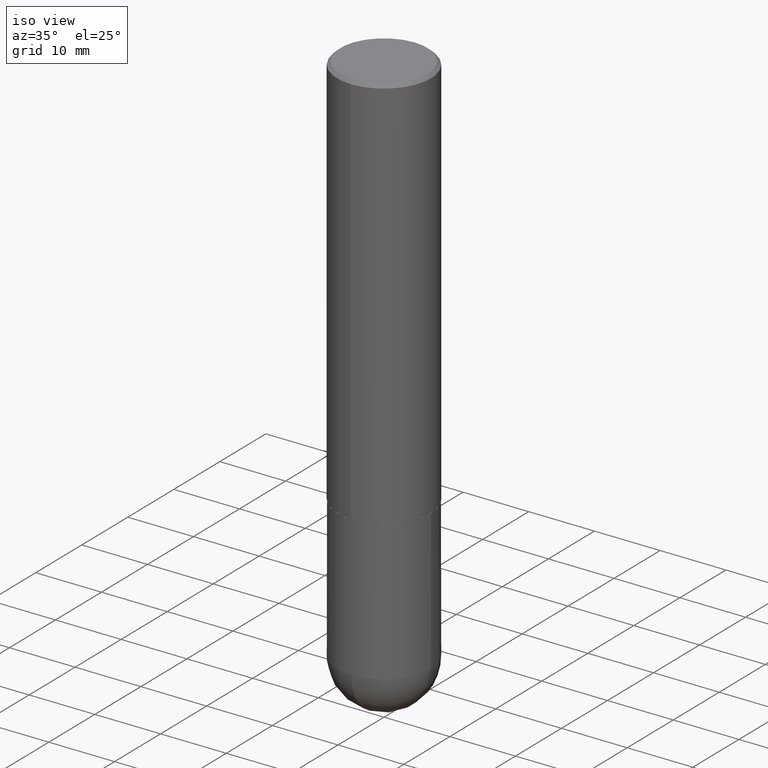
[diagram: clean part render]
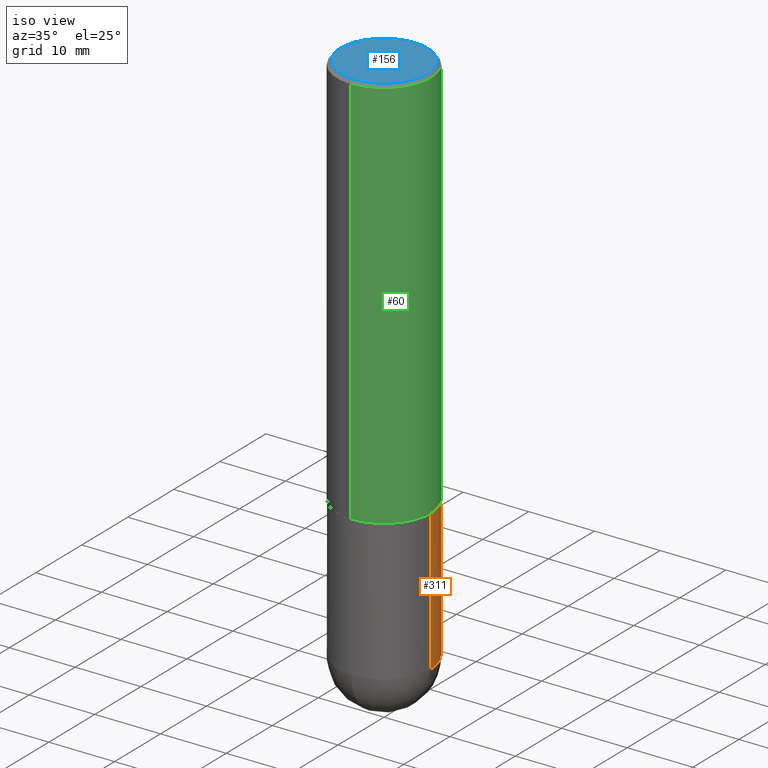
[diagram: same view with three faces highlighted in distinct colors, each labeled with its STEP entity id]
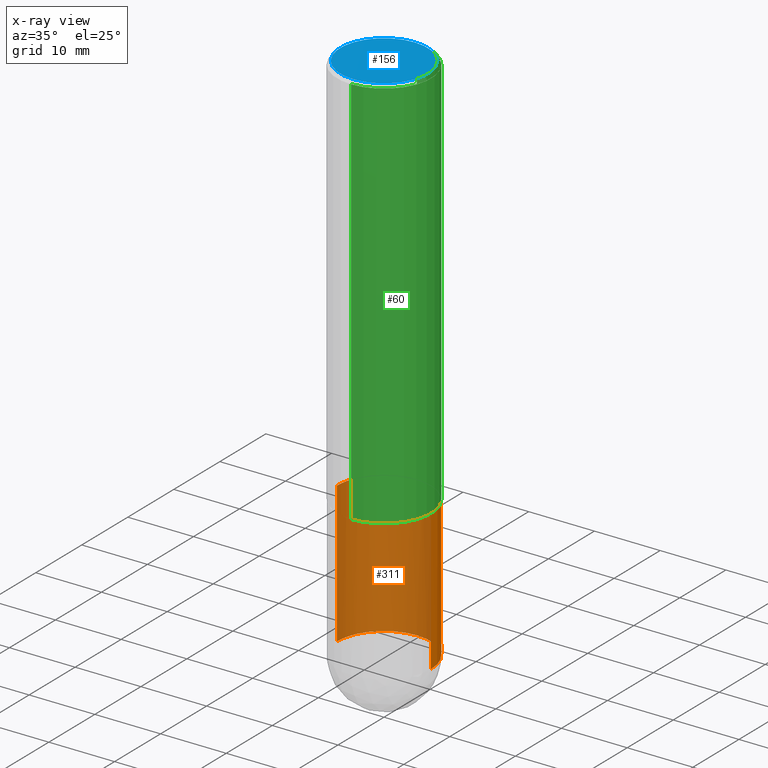
[diagram: x-ray of the same camera — body ghosted, the three highlighted faces saturated]
A machine part, iso view with three faces highlighted in distinct colors.
The next image is the same camera in x-ray (body ghosted, the three faces saturated) — at least one of them is partly hidden behind the body in this view.
Their STEP definitions:

[orange] entity #311 — the highlighted cylindrical surface (partial cylindrical patch) has radius 7.1438 mm, axis along (-0, 0, 1).
#17 = EDGE_CURVE ( 'NONE', #129, #151, #356, .T. ) ;
#25 = CARTESIAN_POINT ( 'NONE',  ( 1.963958253099340610E-15, 0.2812499999999886757, -3.218750000000000888 ) ) ;
#28 = VERTEX_POINT ( 'NONE', #324 ) ;
#36 = CARTESIAN_POINT ( 'NONE',  ( 0.2812500000000000555, -1.963958253099262907E-15, 1.371424718192607012E-29 ) ) ;
#40 = DIRECTION ( 'NONE',  ( -2.445468806185136877E-29, 3.491481338843145188E-15, 1.000000000000000000 ) ) ;
#67 = CARTESIAN_POINT ( 'NONE',  ( 0.000000000000000000, 0.000000000000000000, 0.000000000000000000 ) ) ;
#70 = DIRECTION ( 'NONE',  ( 1.000000000000000000, -6.982962677686266711E-15, 0.000000000000000000 ) ) ;
#80 = EDGE_LOOP ( 'NONE', ( #400, #375, #242, #243, #188 ) ) ;
#81 = CARTESIAN_POINT ( 'NONE',  ( 7.871352719908407300E-29, -1.123820555940137375E-14, -3.218749999999999556 ) ) ;
#86 = CARTESIAN_POINT ( 'NONE',  ( 7.871352719908407300E-29, -1.123820555940137375E-14, -3.218749999999999556 ) ) ;
#88 = CIRCLE ( 'NONE', #247, 0.2812500000000000555 ) ;
#110 = VECTOR ( 'NONE', #299, 39.37007874015748143 ) ;
#128 = DIRECTION ( 'NONE',  ( 1.000000000000000000, -6.982962677686268288E-15, 0.000000000000000000 ) ) ;
#129 = VERTEX_POINT ( 'NONE', #182 ) ;
#130 = LINE ( 'NONE', #36, #186 ) ;
#134 = CARTESIAN_POINT ( 'NONE',  ( 0.2812500000000000555, -1.172919512267618602E-14, -3.218749999999999556 ) ) ;
#150 = DIRECTION ( 'NONE',  ( -2.445468806185136597E-29, 3.491481338843145583E-15, 1.000000000000000000 ) ) ;
#151 = VERTEX_POINT ( 'NONE', #187 ) ;
#172 = CARTESIAN_POINT ( 'NONE',  ( -0.2812500000000000555, 1.998401444325282167E-15, -1.383450494134192269E-29 ) ) ;
#182 = CARTESIAN_POINT ( 'NONE',  ( 0.2812500000000000000, -1.025622643285173184E-14, -2.374999999999999556 ) ) ;
#186 = VECTOR ( 'NONE', #40, 39.37007874015748143 ) ;
#187 = CARTESIAN_POINT ( 'NONE',  ( -0.2812500000000000000, -7.766835425251639371E-15, -2.374999999999999556 ) ) ;
#188 = ORIENTED_EDGE ( 'NONE', *, *, #202, .T. ) ;
#189 = DIRECTION ( 'NONE',  ( -2.445468806185136597E-29, 3.491481338843145583E-15, 1.000000000000000000 ) ) ;
#200 = AXIS2_PLACEMENT_3D ( 'NONE', #229, #353, #70 ) ;
#201 = CYLINDRICAL_SURFACE ( 'NONE', #240, 0.2812500000000000555 ) ;
#202 = EDGE_CURVE ( 'NONE', #347, #216, #344, .T. ) ;
#213 = FACE_OUTER_BOUND ( 'NONE', #80, .T. ) ;
#216 = VERTEX_POINT ( 'NONE', #25 ) ;
#229 = CARTESIAN_POINT ( 'NONE',  ( 5.807988414689698296E-29, -8.292268179752468540E-15, -2.374999999999999556 ) ) ;
#232 = EDGE_CURVE ( 'NONE', #216, #28, #88, .T. ) ;
#240 = AXIS2_PLACEMENT_3D ( 'NONE', #67, #410, #378 ) ;
#242 = ORIENTED_EDGE ( 'NONE', *, *, #17, .F. ) ;
#243 = ORIENTED_EDGE ( 'NONE', *, *, #329, .F. ) ;
#247 = AXIS2_PLACEMENT_3D ( 'NONE', #86, #150, #128 ) ;
#273 = AXIS2_PLACEMENT_3D ( 'NONE', #81, #189, #316 ) ;
#299 = DIRECTION ( 'NONE',  ( -2.445468806185136877E-29, 3.491481338843145188E-15, 1.000000000000000000 ) ) ;
#311 = ADVANCED_FACE ( 'NONE', ( #213 ), #201, .T. ) ;
#316 = DIRECTION ( 'NONE',  ( 1.000000000000000000, -6.982962677686268288E-15, 0.000000000000000000 ) ) ;
#324 = CARTESIAN_POINT ( 'NONE',  ( -0.2812500000000000555, -7.766835425251640949E-15, -3.218749999999999556 ) ) ;
#329 = EDGE_CURVE ( 'NONE', #347, #129, #130, .T. ) ;
#335 = EDGE_CURVE ( 'NONE', #28, #151, #376, .T. ) ;
#344 = CIRCLE ( 'NONE', #273, 0.2812500000000000555 ) ;
#347 = VERTEX_POINT ( 'NONE', #134 ) ;
#353 = DIRECTION ( 'NONE',  ( -2.445468806185136597E-29, 3.491481338843145583E-15, 1.000000000000000000 ) ) ;
#356 = CIRCLE ( 'NONE', #200, 0.2812500000000000000 ) ;
#375 = ORIENTED_EDGE ( 'NONE', *, *, #335, .T. ) ;
#376 = LINE ( 'NONE', #172, #110 ) ;
#378 = DIRECTION ( 'NONE',  ( 1.000000000000000000, -6.982962677686266711E-15, 4.876176775795935232E-29 ) ) ;
#400 = ORIENTED_EDGE ( 'NONE', *, *, #232, .T. ) ;
#410 = DIRECTION ( 'NONE',  ( -2.445468806185136597E-29, 3.491481338843145583E-15, 1.000000000000000000 ) ) ;

[blue] entity #156 — the highlighted planar face has unit normal (0, -0, -1).
#1 = CARTESIAN_POINT ( 'NONE',  ( 4.382219202564076479E-45, -6.257564182083579775E-31, -1.792106157134673927E-16 ) ) ;
#2 = VERTEX_POINT ( 'NONE', #350 ) ;
#46 = CARTESIAN_POINT ( 'NONE',  ( -1.860910081895528315E-15, -0.2612500000000002043, 7.330057929300550377E-16 ) ) ;
#59 = DIRECTION ( 'NONE',  ( -6.982962677686265133E-15, -1.000000000000000000, 3.491737449353193105E-15 ) ) ;
#142 = EDGE_CURVE ( 'NONE', #404, #2, #256, .T. ) ;
#154 = FACE_OUTER_BOUND ( 'NONE', #355, .T. ) ;
#156 = ADVANCED_FACE ( 'NONE', ( #154 ), #306, .F. ) ;
#160 = DIRECTION ( 'NONE',  ( 6.982962677686265922E-15, 1.000000000000000000, -3.491737449353193105E-15 ) ) ;
#190 = ORIENTED_EDGE ( 'NONE', *, *, #142, .T. ) ;
#217 = AXIS2_PLACEMENT_3D ( 'NONE', #339, #312, #59 ) ;
#256 = CIRCLE ( 'NONE', #217, 0.2612500000000002043 ) ;
#289 = CARTESIAN_POINT ( 'NONE',  ( 1.824298999545538283E-15, 0.2612500000000002043, -1.001821716500255930E-15 ) ) ;
#298 = AXIS2_PLACEMENT_3D ( 'NONE', #1, #382, #325 ) ;
#306 = PLANE ( 'NONE',  #364 ) ;
#312 = DIRECTION ( 'NONE',  ( -2.445289965171834089E-29, 3.491737449353193105E-15, 1.000000000000000000 ) ) ;
#325 = DIRECTION ( 'NONE',  ( -6.982962677686265133E-15, -1.000000000000000000, 3.491737449353193105E-15 ) ) ;
#326 = EDGE_CURVE ( 'NONE', #2, #404, #331, .T. ) ;
#331 = CIRCLE ( 'NONE', #298, 0.2612500000000002043 ) ;
#339 = CARTESIAN_POINT ( 'NONE',  ( 4.382219202564076479E-45, -6.257564182083579775E-31, -1.792106157134673927E-16 ) ) ;
#350 = CARTESIAN_POINT ( 'NONE',  ( 1.894128626322400397E-15, 0.2612500000000002043, -1.091427024356989823E-15 ) ) ;
#355 = EDGE_LOOP ( 'NONE', ( #370, #190 ) ) ;
#364 = AXIS2_PLACEMENT_3D ( 'NONE', #289, #371, #160 ) ;
#370 = ORIENTED_EDGE ( 'NONE', *, *, #326, .T. ) ;
#371 = DIRECTION ( 'NONE',  ( 2.445289965171833809E-29, -3.491737449353193105E-15, -1.000000000000000000 ) ) ;
#382 = DIRECTION ( 'NONE',  ( -2.445289965171834089E-29, 3.491737449353193105E-15, 1.000000000000000000 ) ) ;
#404 = VERTEX_POINT ( 'NONE', #46 ) ;

[green] entity #60 — the highlighted cylindrical surface (partial cylindrical patch) has radius 7.1438 mm, axis along (-0, 0, 1).
#6 = EDGE_CURVE ( 'NONE', #20, #155, #185, .T. ) ;
#10 = VECTOR ( 'NONE', #120, 39.37007874015748143 ) ;
#14 = FACE_OUTER_BOUND ( 'NONE', #293, .T. ) ;
#20 = VERTEX_POINT ( 'NONE', #198 ) ;
#48 = EDGE_CURVE ( 'NONE', #195, #224, #336, .T. ) ;
#60 = ADVANCED_FACE ( 'NONE', ( #14 ), #277, .T. ) ;
#96 = AXIS2_PLACEMENT_3D ( 'NONE', #133, #261, #380 ) ;
#99 = ORIENTED_EDGE ( 'NONE', *, *, #48, .T. ) ;
#107 = DIRECTION ( 'NONE',  ( -6.982962677686265133E-15, -1.000000000000000000, 3.885294924322502955E-15 ) ) ;
#120 = DIRECTION ( 'NONE',  ( -2.445289965171834089E-29, 3.491737449353193105E-15, 1.000000000000000000 ) ) ;
#131 = ORIENTED_EDGE ( 'NONE', *, *, #6, .F. ) ;
#133 = CARTESIAN_POINT ( 'NONE',  ( 4.890579930343684363E-31, -6.983474898706407953E-17, -0.02000000000000006287 ) ) ;
#155 = VERTEX_POINT ( 'NONE', #157 ) ;
#157 = CARTESIAN_POINT ( 'NONE',  ( 1.963958253099263301E-15, 0.2812499999999999445, -0.02000000000000104472 ) ) ;
#176 = CARTESIAN_POINT ( 'NONE',  ( 5.805118377317934048E-29, -8.289384704764479021E-15, -2.373999999999999666 ) ) ;
#178 = VECTOR ( 'NONE', #366, 39.37007874015748143 ) ;
#185 = CIRCLE ( 'NONE', #96, 0.2812500000000000555 ) ;
#195 = VERTEX_POINT ( 'NONE', #255 ) ;
#198 = CARTESIAN_POINT ( 'NONE',  ( -1.929515061873242857E-15, -0.2812500000000001110, -0.01999999999999908101 ) ) ;
#205 = AXIS2_PLACEMENT_3D ( 'NONE', #176, #304, #107 ) ;
#224 = VERTEX_POINT ( 'NONE', #408 ) ;
#234 = DIRECTION ( 'NONE',  ( -2.445289965171834089E-29, 3.491737449353193105E-15, 1.000000000000000000 ) ) ;
#239 = EDGE_CURVE ( 'NONE', #195, #20, #284, .T. ) ;
#245 = CARTESIAN_POINT ( 'NONE',  ( -1.963958253099263696E-15, -0.2812500000000001665, 9.820511576305861032E-16 ) ) ;
#250 = LINE ( 'NONE', #399, #10 ) ;
#253 = ORIENTED_EDGE ( 'NONE', *, *, #292, .T. ) ;
#255 = CARTESIAN_POINT ( 'NONE',  ( -1.963958253099206503E-15, -0.2812500000000086042, -2.373999999999998334 ) ) ;
#261 = DIRECTION ( 'NONE',  ( -2.445289965171834089E-29, 3.491737449353193105E-15, 1.000000000000000000 ) ) ;
#277 = CYLINDRICAL_SURFACE ( 'NONE', #397, 0.2812500000000001665 ) ;
#284 = LINE ( 'NONE', #245, #178 ) ;
#292 = EDGE_CURVE ( 'NONE', #224, #155, #250, .T. ) ;
#293 = EDGE_LOOP ( 'NONE', ( #99, #253, #131, #295 ) ) ;
#295 = ORIENTED_EDGE ( 'NONE', *, *, #239, .F. ) ;
#304 = DIRECTION ( 'NONE',  ( -2.445289965171834089E-29, 3.491737449353193105E-15, 1.000000000000000000 ) ) ;
#336 = CIRCLE ( 'NONE', #205, 0.2812500000000003331 ) ;
#358 = DIRECTION ( 'NONE',  ( -6.982962677686266711E-15, -1.000000000000000000, 3.491737449353193105E-15 ) ) ;
#366 = DIRECTION ( 'NONE',  ( -2.445289965171834089E-29, 3.491737449353193105E-15, 1.000000000000000000 ) ) ;
#380 = DIRECTION ( 'NONE',  ( -6.982962677686265133E-15, -1.000000000000000000, 3.490694658571002410E-15 ) ) ;
#394 = CARTESIAN_POINT ( 'NONE',  ( 0.000000000000000000, 0.000000000000000000, 0.000000000000000000 ) ) ;
#397 = AXIS2_PLACEMENT_3D ( 'NONE', #394, #234, #358 ) ;
#399 = CARTESIAN_POINT ( 'NONE',  ( 1.998401444325282956E-15, 0.2812500000000001665, -9.820511576305861032E-16 ) ) ;
#408 = CARTESIAN_POINT ( 'NONE',  ( 1.998401444325312538E-15, 0.2812499999999920064, -2.374000000000000554 ) ) ;